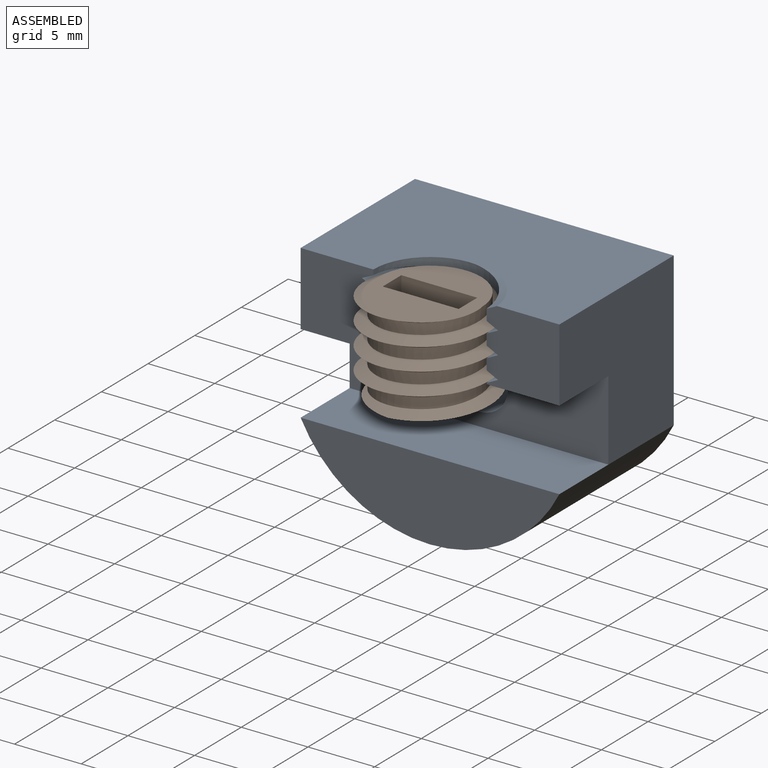
[diagram: assembled view]
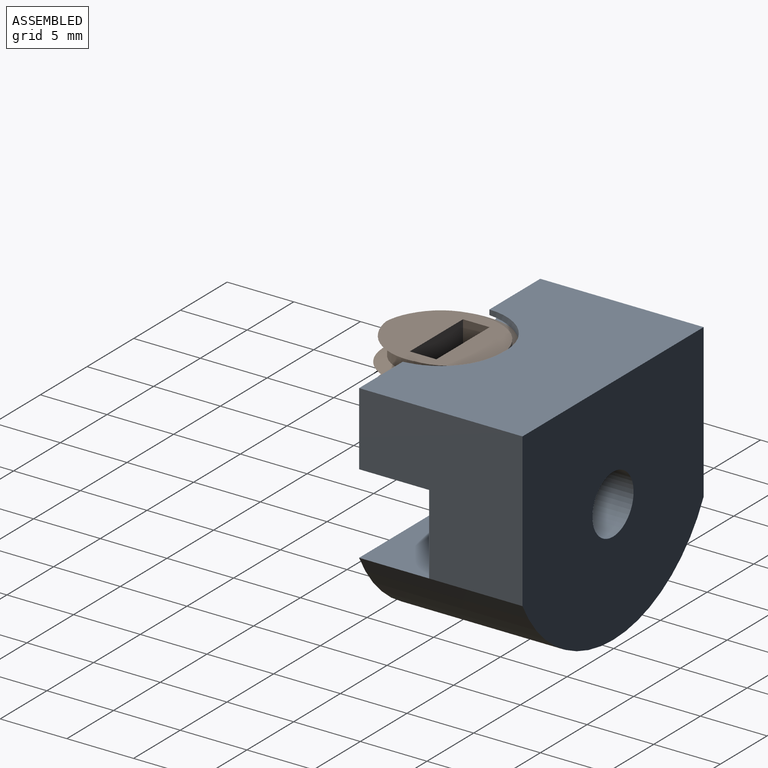
[diagram: assembled view, second angle]
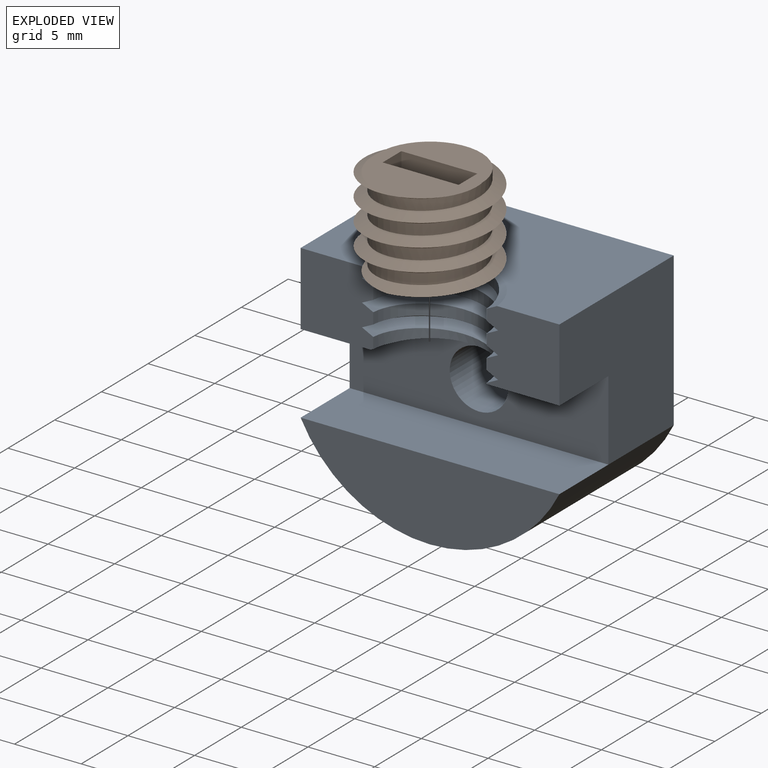
[diagram: exploded view]
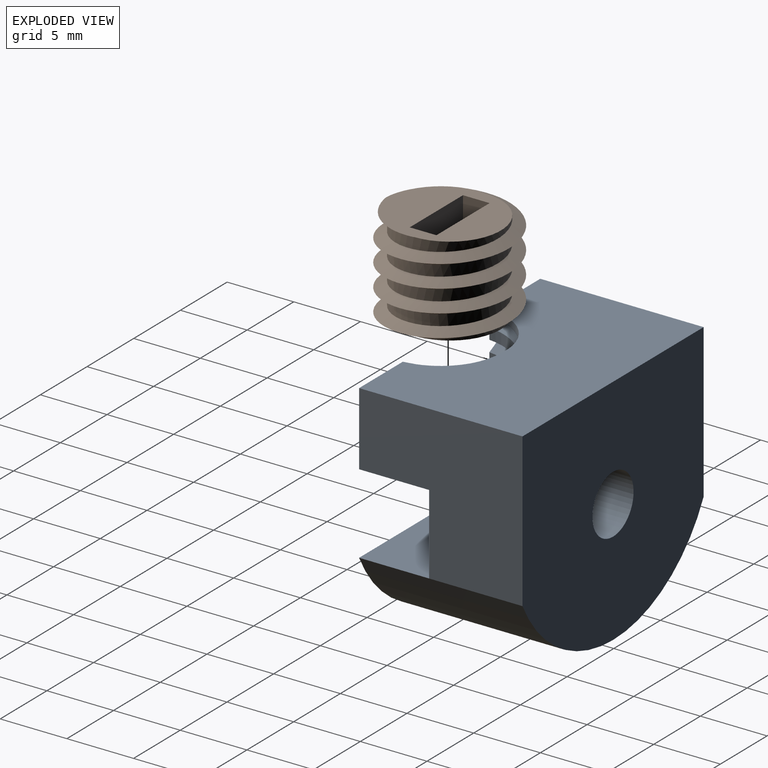
[diagram: exploded view, second angle]
ASSEMBLY  parts=2 mates=2
PART A: 24 faces, bbox 19.7x17x18.4 mm
  f0: plane 12.25x11.5mm, normal (1,0,0), area 109.4mm2, adj f14,f16,f17,f18,f19,f21
  f1: plane 12.25x11.5mm, normal (-1,0,0), area 109.4mm2, adj f14,f16,f17,f18,f19,f22
  f2: cylinder r=4.25mm len=8.5mm, axis (0,0,1), area 9.4mm2, adj f9,f13,f17,f21,f22
  f3: cylinder r=4.25mm len=8.5mm, axis (0,0,1), area 11mm2, adj f8,f12,f21,f22
  f4: cylinder r=4.25mm len=8.5mm, axis (0,0,1), area 11mm2, adj f7,f11,f21,f22
  f5: cylinder r=4.25mm len=8.5mm, axis (0,0,1), area 6.7mm2, adj f6,f10,f16,f21,f22
  f6: bspline ~8.83x2.98mm, area 0.2mm2, adj f5,f16,f22
  f7: bspline ~10.31x10.2mm, area 14mm2, adj f4,f10,f21,f22
  f8: bspline ~10.31x10.2mm, area 14mm2, adj f3,f11,f21,f22
  f9: bspline ~10.31x10.2mm, area 14mm2, adj f2,f12,f21,f22
  f10: bspline ~10.31x10.2mm, area 14mm2, adj f5,f7,f21,f22
  f11: bspline ~10.31x10.2mm, area 14mm2, adj f4,f8,f21,f22
  f12: bspline ~10.31x10.2mm, area 14mm2, adj f3,f9,f21,f22
  f13: bspline ~10.31x7.65mm, area 3.1mm2, adj f2,f17,f21
  f14: cylinder r=10.84mm len=19.4mm, axis (0,1,0), area 294.3mm2, adj f0,f1,f15,f18,f23
  f15: plane 19.4x5.25mm, normal (0,0,1), area 101.9mm2, adj f14,f19,f23
  f16: plane 19.41x5.26mm, normal (0,0,-1), area 73.3mm2, adj f0,f1,f5,f6,f19,f21,f22
  f17: plane 19.75x12.6mm, normal (0,0,1), area 206.7mm2, adj f0,f1,f2,f13,f18,f21,f22
  f18: plane 19.4x17.5mm, normal (0,1,0), area 291.1mm2, adj f0,f1,f14,f17,f20
  f19: plane 19.4x6mm, normal (0,-1,0), area 101.2mm2, adj f0,f1,f15,f16,f20
  f20: cylinder r=2.2mm len=7mm, axis (0,1,0), area 96.8mm2, adj f18,f19
  f21: plane 5.5x5.45mm, normal (0,-1,0), area 28.7mm2, adj f0,f2,f3,f4,f5,f7,f8,f9
  f22: plane 5.5x5.45mm, normal (0,-1,0), area 28.9mm2, adj f1,f2,f3,f4,f5,f6,f7,f8
  f23: plane 19.4x6mm, normal (0,-1,0), area 83.2mm2, adj f14,f15
PART B: 11 faces, bbox 9.7x11.2x8.3 mm
  f0: plane 8.87x8.11mm, normal (0,0,1), area 40.8mm2, adj f1,f2,f3,f4,f6,f7,f8,f9
  f1: bspline ~10.85x9.4mm, area 102.4mm2, adj f0,f2,f4,f5
  f2: bspline ~10.85x9.4mm, area 102.3mm2, adj f0,f1,f3,f4,f5
  f3: plane 0.03x0.01mm, normal (0,1,0), area 0mm2, adj f0,f2,f4
  f4: cylinder r=3.85mm len=7.7mm, axis (0,0,-1), area 77.8mm2, adj f0,f1,f2,f3,f5
  f5: plane 8.85x8.1mm, normal (0,0,-1), area 52.2mm2, adj f1,f2,f4
  f6: plane 5.7x4.5mm, normal (0,-1,0), area 25.6mm2, adj f0,f7,f9,f10
  f7: plane 4.5x2mm, normal (1,0,0), area 9mm2, adj f0,f6,f8,f10
  f8: plane 5.7x4.5mm, normal (0,1,0), area 25.6mm2, adj f0,f7,f9,f10
  f9: plane 4.5x2mm, normal (-1,0,0), area 9mm2, adj f0,f6,f8,f10
  f10: plane 5.7x2mm, normal (0,0,1), area 11.4mm2, adj f6,f7,f8,f9
PLACE A t=(-0.16,9.84,-3.82)mm
PLACE B t=(-0.16,-2.41,-9.02)mm
MATE cylindrical A.f2 <-> B.f4  axis (0,0,1) through (-0.16,-2.41,2.72)mm
MATE parallel A.f17 <-> B.f5  axis (0,0,1) through (-0.21,4.36,4.78)mm
